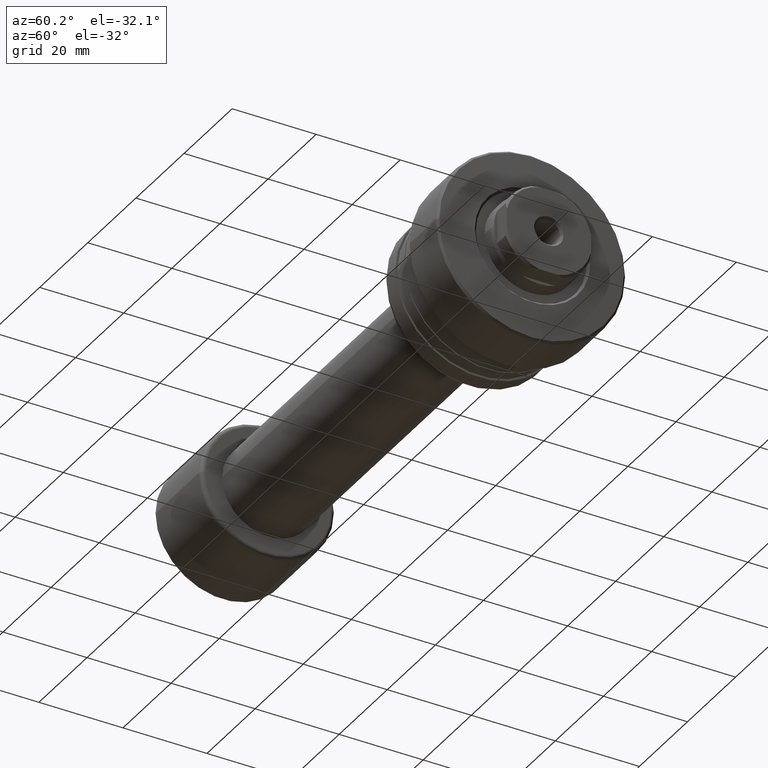
[diagram: clean part render]
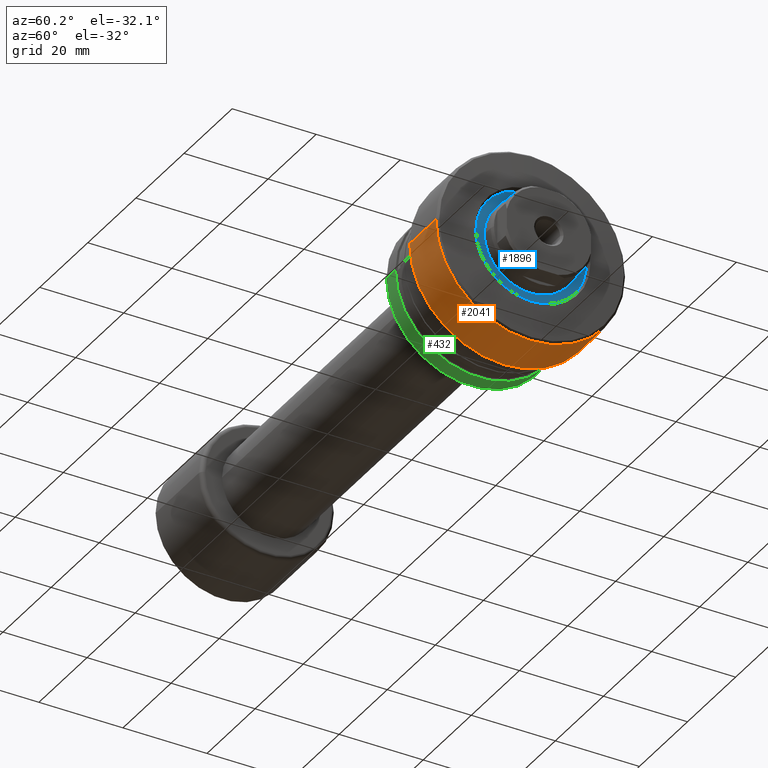
[diagram: same view with three faces highlighted in distinct colors, each labeled with its STEP entity id]
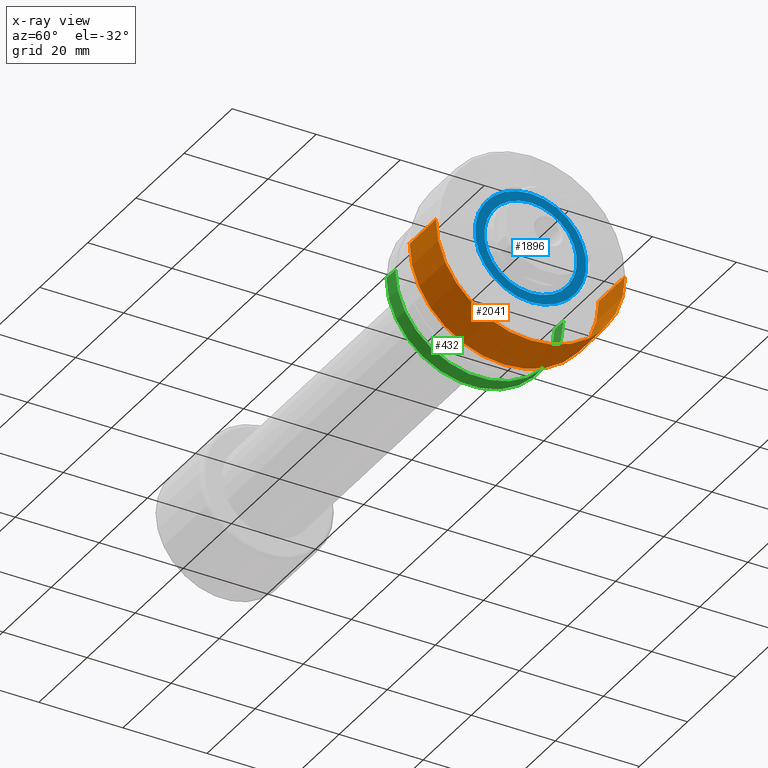
[diagram: x-ray of the same camera — body ghosted, the three highlighted faces saturated]
A machine part, auxiliary view with three faces highlighted in distinct colors.
The next image is the same camera in x-ray (body ghosted, the three faces saturated) — at least one of them is partly hidden behind the body in this view.
Their STEP definitions:

[orange] entity #2041 — the highlighted cylindrical surface (partial cylindrical patch) has radius 22.5 mm, axis along (-1, 0, 0).
#4 = DIRECTION ( 'NONE',  ( -1.000000000000000000, 1.333885945136072597E-15, -0.000000000000000000 ) ) ;
#90 = EDGE_CURVE ( 'NONE', #1536, #188, #822, .T. ) ;
#124 = CARTESIAN_POINT ( 'NONE',  ( -30.28002276692729211, 22.49999999999996803, 2.755455298081540833E-15 ) ) ;
#188 = VERTEX_POINT ( 'NONE', #677 ) ;
#193 = CARTESIAN_POINT ( 'NONE',  ( -1.600000000000666889, -3.825587927498604708E-14, 0.000000000000000000 ) ) ;
#357 = DIRECTION ( 'NONE',  ( -1.329954664915554407E-15, -1.000000000000000000, 0.000000000000000000 ) ) ;
#529 = CARTESIAN_POINT ( 'NONE',  ( -30.28002276692735606, -22.49999999999996803, 0.000000000000000000 ) ) ;
#586 = VECTOR ( 'NONE', #1992, 1000.000000000000000 ) ;
#677 = CARTESIAN_POINT ( 'NONE',  ( -12.50000000000068212, -22.49999999999999645, 2.755455298081541622E-15 ) ) ;
#704 = EDGE_CURVE ( 'NONE', #2112, #188, #706, .T. ) ;
#706 = LINE ( 'NONE', #529, #824 ) ;
#724 = ORIENTED_EDGE ( 'NONE', *, *, #90, .F. ) ;
#752 = CARTESIAN_POINT ( 'NONE',  ( -12.50000000000062350, 22.49999999999995026, 0.000000000000000000 ) ) ;
#822 = CIRCLE ( 'NONE', #1808, 22.49999999999997513 ) ;
#824 = VECTOR ( 'NONE', #1468, 1000.000000000000000 ) ;
#841 = EDGE_CURVE ( 'NONE', #2131, #2112, #1104, .T. ) ;
#848 = DIRECTION ( 'NONE',  ( -1.000000000000000000, 1.333885945136072597E-15, -0.000000000000000000 ) ) ;
#864 = ORIENTED_EDGE ( 'NONE', *, *, #841, .T. ) ;
#1007 = DIRECTION ( 'NONE',  ( -1.000000000000000000, 1.333885945136072597E-15, -0.000000000000000000 ) ) ;
#1104 = CIRCLE ( 'NONE', #2124, 22.49999999999996092 ) ;
#1180 = ORIENTED_EDGE ( 'NONE', *, *, #1279, .F. ) ;
#1279 = EDGE_CURVE ( 'NONE', #2131, #1536, #2174, .T. ) ;
#1301 = AXIS2_PLACEMENT_3D ( 'NONE', #2118, #1007, #1898 ) ;
#1333 = FACE_OUTER_BOUND ( 'NONE', #2269, .T. ) ;
#1468 = DIRECTION ( 'NONE',  ( -1.000000000000000000, 1.333885945136072597E-15, -0.000000000000000000 ) ) ;
#1536 = VERTEX_POINT ( 'NONE', #752 ) ;
#1808 = AXIS2_PLACEMENT_3D ( 'NONE', #2148, #848, #2348 ) ;
#1898 = DIRECTION ( 'NONE',  ( -1.387778780781447648E-15, -1.000000000000000000, 0.000000000000000000 ) ) ;
#1992 = DIRECTION ( 'NONE',  ( -1.000000000000000000, 1.333885945136072597E-15, -0.000000000000000000 ) ) ;
#2041 = ADVANCED_FACE ( 'NONE', ( #1333 ), #2307, .T. ) ;
#2072 = ORIENTED_EDGE ( 'NONE', *, *, #704, .T. ) ;
#2112 = VERTEX_POINT ( 'NONE', #2264 ) ;
#2118 = CARTESIAN_POINT ( 'NONE',  ( -30.28002276692732408, 0.000000000000000000, 0.000000000000000000 ) ) ;
#2124 = AXIS2_PLACEMENT_3D ( 'NONE', #193, #4, #357 ) ;
#2131 = VERTEX_POINT ( 'NONE', #2319 ) ;
#2148 = CARTESIAN_POINT ( 'NONE',  ( -12.50000000000065370, -2.371652247300287340E-14, 0.000000000000000000 ) ) ;
#2174 = LINE ( 'NONE', #124, #586 ) ;
#2264 = CARTESIAN_POINT ( 'NONE',  ( -1.600000000000696865, -22.50000000000000000, 0.000000000000000000 ) ) ;
#2269 = EDGE_LOOP ( 'NONE', ( #1180, #864, #2072, #724 ) ) ;
#2307 = CYLINDRICAL_SURFACE ( 'NONE', #1301, 22.49999999999996803 ) ;
#2319 = CARTESIAN_POINT ( 'NONE',  ( -1.600000000000636913, 22.49999999999992184, 2.755455298081540439E-15 ) ) ;
#2348 = DIRECTION ( 'NONE',  ( -1.310679959626922274E-15, -1.000000000000000000, 0.000000000000000000 ) ) ;

[blue] entity #1896 — the highlighted planar face has unit normal (1, 0, 0).
#41 = ORIENTED_EDGE ( 'NONE', *, *, #1894, .T. ) ;
#62 = CARTESIAN_POINT ( 'NONE',  ( -1.500000000000000000, 0.000000000000000000, -11.00000000000000000 ) ) ;
#76 = EDGE_LOOP ( 'NONE', ( #1804, #41 ) ) ;
#88 = DIRECTION ( 'NONE',  ( 1.000000000000000000, 0.000000000000000000, 0.000000000000000000 ) ) ;
#117 = DIRECTION ( 'NONE',  ( 0.000000000000000000, 0.000000000000000000, -1.000000000000000000 ) ) ;
#169 = EDGE_CURVE ( 'NONE', #1506, #582, #1217, .T. ) ;
#356 = FACE_OUTER_BOUND ( 'NONE', #76, .T. ) ;
#364 = DIRECTION ( 'NONE',  ( 0.000000000000000000, 0.000000000000000000, -1.000000000000000000 ) ) ;
#366 = EDGE_CURVE ( 'NONE', #1205, #2382, #459, .T. ) ;
#459 = CIRCLE ( 'NONE', #1725, 13.25000000000000178 ) ;
#582 = VERTEX_POINT ( 'NONE', #62 ) ;
#650 = CARTESIAN_POINT ( 'NONE',  ( -1.500000000000000000, 0.000000000000000000, -13.25000000000000178 ) ) ;
#698 = CARTESIAN_POINT ( 'NONE',  ( -1.500000000000000000, 0.000000000000000000, 0.000000000000000000 ) ) ;
#926 = DIRECTION ( 'NONE',  ( 0.000000000000000000, 0.000000000000000000, -1.000000000000000000 ) ) ;
#1058 = AXIS2_PLACEMENT_3D ( 'NONE', #1177, #88, #117 ) ;
#1147 = AXIS2_PLACEMENT_3D ( 'NONE', #2392, #2228, #364 ) ;
#1177 = CARTESIAN_POINT ( 'NONE',  ( -1.500000000000000000, 0.000000000000000000, 0.000000000000000000 ) ) ;
#1205 = VERTEX_POINT ( 'NONE', #650 ) ;
#1217 = CIRCLE ( 'NONE', #1058, 11.00000000000000000 ) ;
#1304 = CIRCLE ( 'NONE', #1655, 11.00000000000000000 ) ;
#1424 = CIRCLE ( 'NONE', #1618, 13.25000000000000178 ) ;
#1438 = ORIENTED_EDGE ( 'NONE', *, *, #169, .F. ) ;
#1459 = DIRECTION ( 'NONE',  ( 1.000000000000000000, 0.000000000000000000, 0.000000000000000000 ) ) ;
#1506 = VERTEX_POINT ( 'NONE', #1857 ) ;
#1517 = EDGE_CURVE ( 'NONE', #582, #1506, #1304, .T. ) ;
#1618 = AXIS2_PLACEMENT_3D ( 'NONE', #2024, #2209, #926 ) ;
#1655 = AXIS2_PLACEMENT_3D ( 'NONE', #1694, #1867, #2429 ) ;
#1694 = CARTESIAN_POINT ( 'NONE',  ( -1.500000000000000000, 0.000000000000000000, 0.000000000000000000 ) ) ;
#1725 = AXIS2_PLACEMENT_3D ( 'NONE', #698, #1459, #2226 ) ;
#1804 = ORIENTED_EDGE ( 'NONE', *, *, #366, .T. ) ;
#1853 = PLANE ( 'NONE',  #1147 ) ;
#1857 = CARTESIAN_POINT ( 'NONE',  ( -1.500000000000000000, 1.347111479062088405E-15, 11.00000000000000000 ) ) ;
#1867 = DIRECTION ( 'NONE',  ( 1.000000000000000000, 0.000000000000000000, 0.000000000000000000 ) ) ;
#1894 = EDGE_CURVE ( 'NONE', #2382, #1205, #1424, .T. ) ;
#1896 = ADVANCED_FACE ( 'NONE', ( #2218, #356 ), #1853, .T. ) ;
#1962 = ORIENTED_EDGE ( 'NONE', *, *, #1517, .F. ) ;
#2024 = CARTESIAN_POINT ( 'NONE',  ( -1.500000000000000000, 0.000000000000000000, 0.000000000000000000 ) ) ;
#2067 = EDGE_LOOP ( 'NONE', ( #1962, #1438 ) ) ;
#2209 = DIRECTION ( 'NONE',  ( 1.000000000000000000, 0.000000000000000000, 0.000000000000000000 ) ) ;
#2216 = CARTESIAN_POINT ( 'NONE',  ( -1.500000000000000000, 1.622657008870243277E-15, 13.25000000000000178 ) ) ;
#2218 = FACE_BOUND ( 'NONE', #2067, .T. ) ;
#2226 = DIRECTION ( 'NONE',  ( 0.000000000000000000, 0.000000000000000000, -1.000000000000000000 ) ) ;
#2228 = DIRECTION ( 'NONE',  ( 1.000000000000000000, 0.000000000000000000, 0.000000000000000000 ) ) ;
#2382 = VERTEX_POINT ( 'NONE', #2216 ) ;
#2392 = CARTESIAN_POINT ( 'NONE',  ( -1.500000000000000000, 0.000000000000000000, 0.000000000000000000 ) ) ;
#2429 = DIRECTION ( 'NONE',  ( 0.000000000000000000, 0.000000000000000000, -1.000000000000000000 ) ) ;

[green] entity #432 — the highlighted cylindrical surface (partial cylindrical patch) has radius 20 mm, axis along (-1, 0, 0).
#13 = EDGE_CURVE ( 'NONE', #1622, #1213, #2375, .T. ) ;
#20 = CIRCLE ( 'NONE', #341, 19.99999999999999289 ) ;
#136 = DIRECTION ( 'NONE',  ( -1.000000000000000000, 1.333885945136072597E-15, -0.000000000000000000 ) ) ;
#204 = DIRECTION ( 'NONE',  ( -1.000000000000000000, 1.333885945136072597E-15, -0.000000000000000000 ) ) ;
#308 = EDGE_CURVE ( 'NONE', #1251, #1622, #20, .T. ) ;
#327 = ORIENTED_EDGE ( 'NONE', *, *, #308, .T. ) ;
#341 = AXIS2_PLACEMENT_3D ( 'NONE', #1638, #136, #525 ) ;
#396 = ORIENTED_EDGE ( 'NONE', *, *, #13, .T. ) ;
#432 = ADVANCED_FACE ( 'NONE', ( #1514 ), #2076, .T. ) ;
#525 = DIRECTION ( 'NONE',  ( -1.387778780781446267E-15, -1.000000000000000000, 0.000000000000000000 ) ) ;
#543 = AXIS2_PLACEMENT_3D ( 'NONE', #1162, #2278, #976 ) ;
#557 = ORIENTED_EDGE ( 'NONE', *, *, #946, .F. ) ;
#600 = CARTESIAN_POINT ( 'NONE',  ( -30.28002276692732408, 0.000000000000000000, 0.000000000000000000 ) ) ;
#674 = CARTESIAN_POINT ( 'NONE',  ( -22.80878161770232637, 19.99999999999998224, 2.449293598294706119E-15 ) ) ;
#767 = DIRECTION ( 'NONE',  ( -1.387778780781445873E-15, -1.000000000000000000, 0.000000000000000000 ) ) ;
#776 = CARTESIAN_POINT ( 'NONE',  ( -22.80878161770238322, -20.00000000000000355, 0.000000000000000000 ) ) ;
#797 = CARTESIAN_POINT ( 'NONE',  ( -26.50000000000018119, -20.00000000000000355, 2.449293598294706513E-15 ) ) ;
#899 = VECTOR ( 'NONE', #1993, 1000.000000000000000 ) ;
#946 = EDGE_CURVE ( 'NONE', #1251, #1526, #2059, .T. ) ;
#976 = DIRECTION ( 'NONE',  ( -1.387778780781445676E-15, -1.000000000000000000, 0.000000000000000000 ) ) ;
#1011 = ORIENTED_EDGE ( 'NONE', *, *, #2120, .F. ) ;
#1162 = CARTESIAN_POINT ( 'NONE',  ( -26.50000000000015277, -5.042119241098522056E-15, 0.000000000000000000 ) ) ;
#1185 = DIRECTION ( 'NONE',  ( -1.000000000000000000, 1.333885945136072597E-15, -0.000000000000000000 ) ) ;
#1213 = VERTEX_POINT ( 'NONE', #797 ) ;
#1251 = VERTEX_POINT ( 'NONE', #674 ) ;
#1350 = CIRCLE ( 'NONE', #543, 20.00000000000000000 ) ;
#1514 = FACE_OUTER_BOUND ( 'NONE', #1946, .T. ) ;
#1526 = VERTEX_POINT ( 'NONE', #1704 ) ;
#1622 = VERTEX_POINT ( 'NONE', #776 ) ;
#1638 = CARTESIAN_POINT ( 'NONE',  ( -22.80878161770235479, -9.965783561673463636E-15, 0.000000000000000000 ) ) ;
#1704 = CARTESIAN_POINT ( 'NONE',  ( -26.50000000000012434, 19.99999999999999645, 0.000000000000000000 ) ) ;
#1880 = AXIS2_PLACEMENT_3D ( 'NONE', #600, #1185, #767 ) ;
#1946 = EDGE_LOOP ( 'NONE', ( #557, #327, #396, #1011 ) ) ;
#1993 = DIRECTION ( 'NONE',  ( -1.000000000000000000, 1.333885945136072597E-15, -0.000000000000000000 ) ) ;
#2059 = LINE ( 'NONE', #2441, #2320 ) ;
#2076 = CYLINDRICAL_SURFACE ( 'NONE', #1880, 19.99999999999999645 ) ;
#2120 = EDGE_CURVE ( 'NONE', #1526, #1213, #1350, .T. ) ;
#2278 = DIRECTION ( 'NONE',  ( -1.000000000000000000, 1.333885945136072597E-15, -0.000000000000000000 ) ) ;
#2320 = VECTOR ( 'NONE', #204, 1000.000000000000000 ) ;
#2375 = LINE ( 'NONE', #2413, #899 ) ;
#2413 = CARTESIAN_POINT ( 'NONE',  ( -30.28002276692735251, -19.99999999999999645, 0.000000000000000000 ) ) ;
#2441 = CARTESIAN_POINT ( 'NONE',  ( -30.28002276692729566, 19.99999999999999645, 2.449293598294706119E-15 ) ) ;